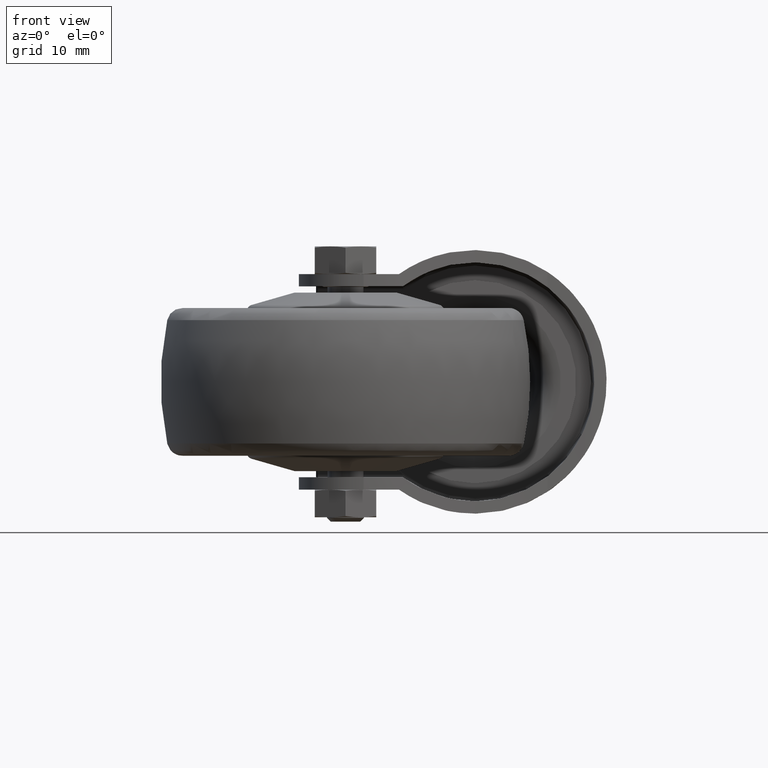
[diagram: clean part render]
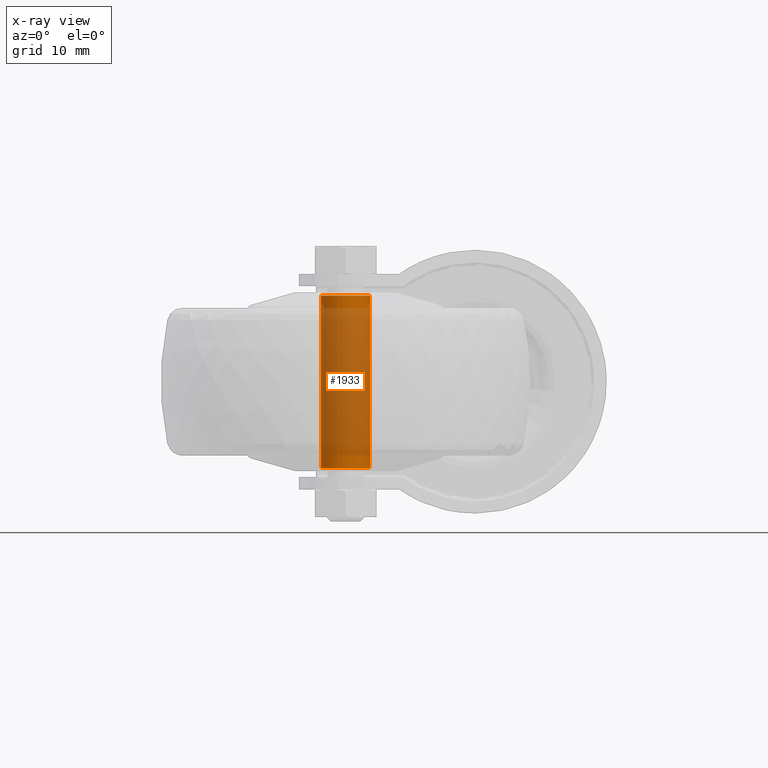
[diagram: x-ray — body ghosted, one internal face saturated and labeled with its STEP entity id]
A machine part, front view, then the same camera in x-ray: the body is ghosted and one INTERNAL B-rep face — a face not visible from any outside direction — is saturated and labeled: STEP entity #1933.
In plain terms, the highlighted cylindrical surface (bore or boss wall) has radius 4 mm, axis along (0, 0, -1).
Its self-contained STEP definition (entity closure, byte-faithful):
#242=CYLINDRICAL_SURFACE('',#2089,4.);
#356=FACE_BOUND('',#587,.T.);
#438=FACE_OUTER_BOUND('',#586,.T.);
#586=EDGE_LOOP('',(#1367));
#587=EDGE_LOOP('',(#1368));
#810=CIRCLE('',#2088,4.);
#811=CIRCLE('',#2090,4.);
#929=VERTEX_POINT('',#3011);
#930=VERTEX_POINT('',#3014);
#1114=EDGE_CURVE('',#929,#929,#810,.T.);
#1115=EDGE_CURVE('',#930,#930,#811,.T.);
#1367=ORIENTED_EDGE('',*,*,#1115,.T.);
#1368=ORIENTED_EDGE('',*,*,#1114,.F.);
#1933=ADVANCED_FACE('',(#438,#356),#242,.F.);
#2088=AXIS2_PLACEMENT_3D('',#3012,#2385,#2386);
#2089=AXIS2_PLACEMENT_3D('',#3013,#2387,#2388);
#2090=AXIS2_PLACEMENT_3D('',#3015,#2389,#2390);
#2385=DIRECTION('center_axis',(1.,0.,0.));
#2386=DIRECTION('ref_axis',(0.,0.,-1.));
#2387=DIRECTION('center_axis',(-1.,0.,0.));
#2388=DIRECTION('ref_axis',(0.,0.,-1.));
#2389=DIRECTION('center_axis',(1.,0.,0.));
#2390=DIRECTION('ref_axis',(0.,0.,-1.));
#3011=CARTESIAN_POINT('',(0.,0.,-4.));
#3012=CARTESIAN_POINT('Origin',(0.,0.,0.));
#3013=CARTESIAN_POINT('Origin',(28.,0.,0.));
#3014=CARTESIAN_POINT('',(28.,0.,-4.));
#3015=CARTESIAN_POINT('Origin',(28.,0.,0.));